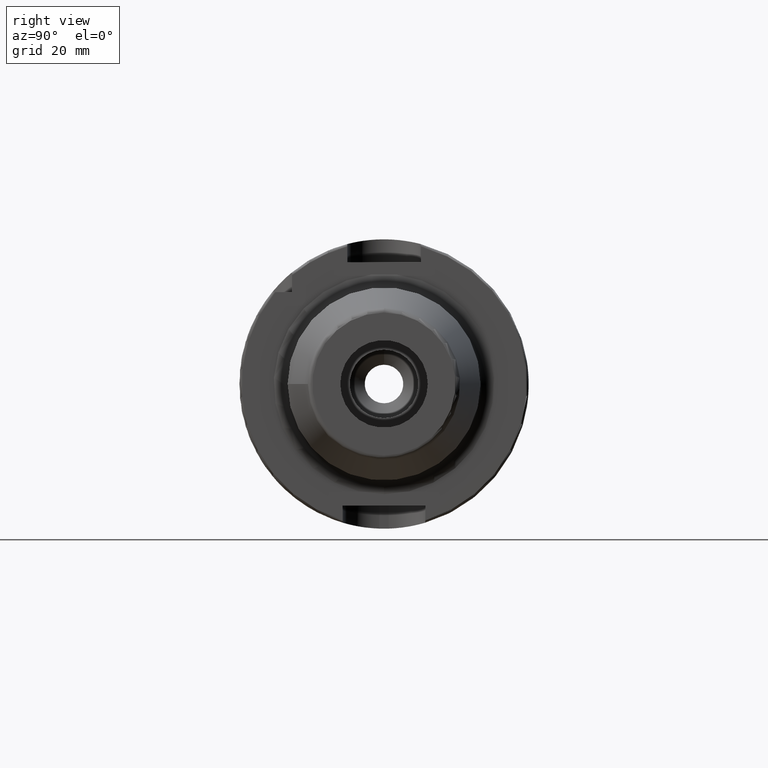
[diagram: clean part render]
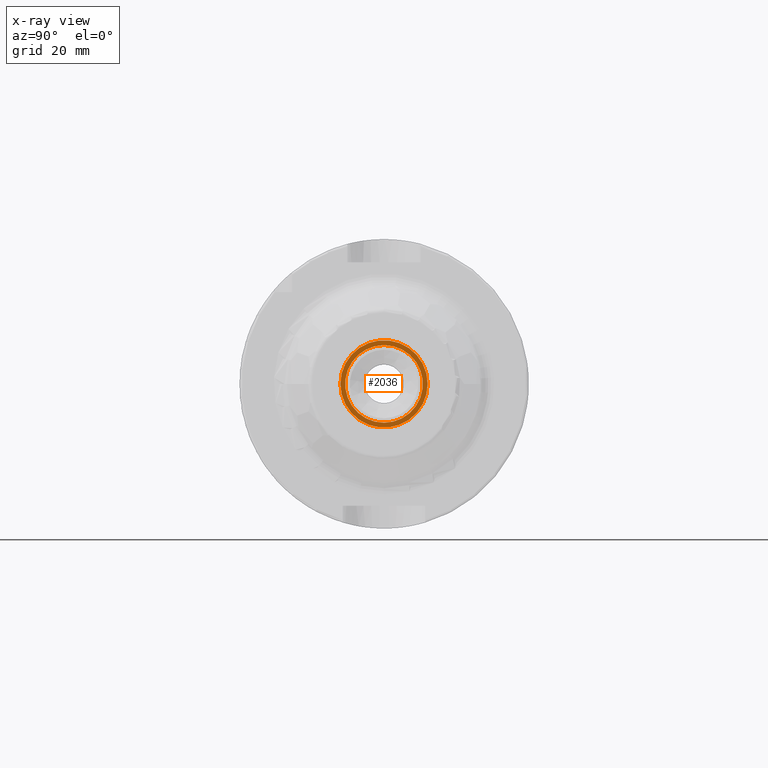
[diagram: x-ray — body ghosted, one internal face saturated and labeled with its STEP entity id]
A machine part, right view, then the same camera in x-ray: the body is ghosted and one INTERNAL B-rep face — a face not visible from any outside direction — is saturated and labeled: STEP entity #2036.
In plain terms, the highlighted planar face has unit normal (-1, 0, 0).
Its self-contained STEP definition (entity closure, byte-faithful):
#105=FACE_BOUND('',#436,.T.);
#147=PLANE('',#2290);
#311=FACE_OUTER_BOUND('',#435,.T.);
#435=EDGE_LOOP('',(#1864));
#436=EDGE_LOOP('',(#1865));
#765=CIRCLE('',#2281,8.458734);
#770=CIRCLE('',#2289,9.5);
#970=VERTEX_POINT('',#4310);
#974=VERTEX_POINT('',#4323);
#1269=EDGE_CURVE('',#970,#970,#765,.T.);
#1275=EDGE_CURVE('',#974,#974,#770,.T.);
#1864=ORIENTED_EDGE('',*,*,#1275,.F.);
#1865=ORIENTED_EDGE('',*,*,#1269,.T.);
#2036=ADVANCED_FACE('',(#311,#105),#147,.F.);
#2281=AXIS2_PLACEMENT_3D('',#4312,#2838,#2839);
#2289=AXIS2_PLACEMENT_3D('',#4325,#2855,#2856);
#2290=AXIS2_PLACEMENT_3D('',#4326,#2857,#2858);
#2838=DIRECTION('center_axis',(-1.,0.,0.));
#2839=DIRECTION('ref_axis',(0.,0.,1.));
#2855=DIRECTION('center_axis',(-1.,0.,0.));
#2856=DIRECTION('ref_axis',(0.,0.,1.));
#2857=DIRECTION('center_axis',(-1.,0.,0.));
#2858=DIRECTION('ref_axis',(0.,0.,1.));
#4310=CARTESIAN_POINT('',(17.,-1.03589615179389E-15,-8.458734));
#4312=CARTESIAN_POINT('Origin',(17.,0.,0.));
#4323=CARTESIAN_POINT('',(17.,-9.5,1.16341445918999E-15));
#4325=CARTESIAN_POINT('Origin',(17.,0.,0.));
#4326=CARTESIAN_POINT('Origin',(17.,7.5,0.));